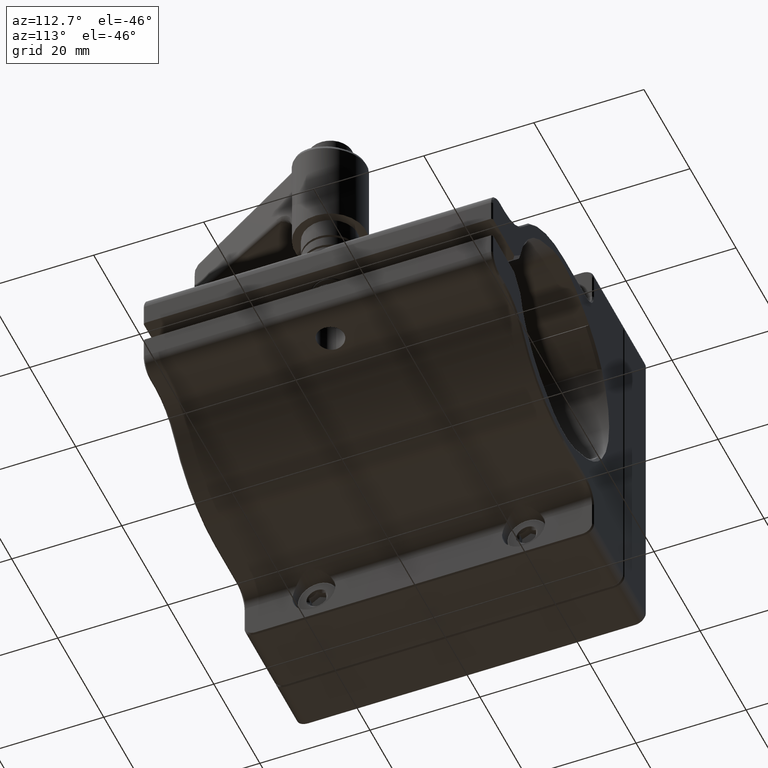
[diagram: clean part render]
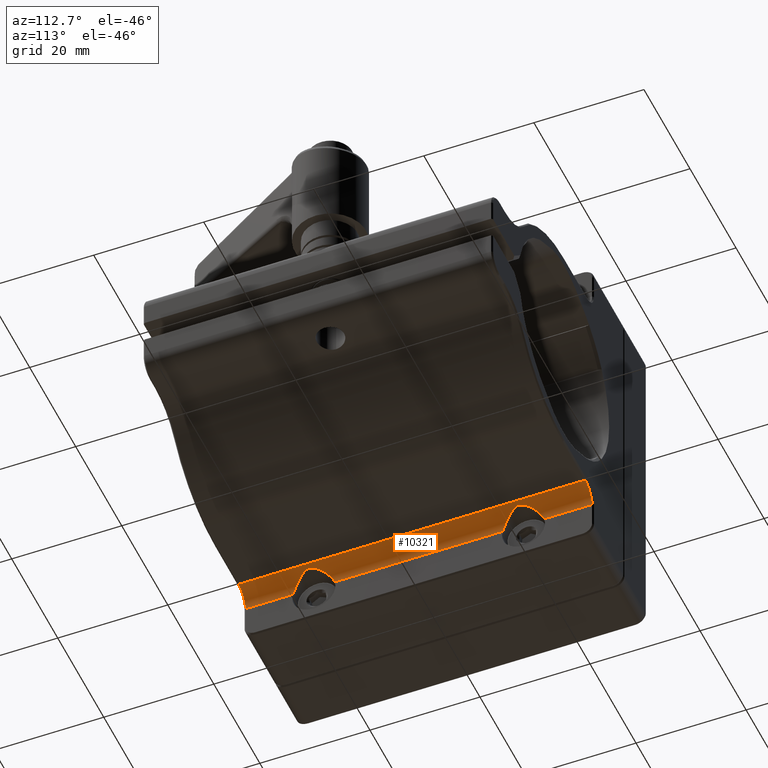
[diagram: same view with one face highlighted and labeled with its STEP entity id]
A machine part, auxiliary view. The second image highlights one B-rep face of the part: STEP entity #10321.
In plain terms, the highlighted cylindrical surface (edge-blend (fillet) strip) has radius 3 mm, axis along (-0, 1, 0).
Its self-contained STEP definition (entity closure, byte-faithful):
#374 = VECTOR ( 'NONE', #13506, 1000.000000000000000 ) ;
#410 = B_SPLINE_CURVE_WITH_KNOTS ( 'NONE', 3,
 ( #15550, #8176, #7125, #5577, #5902, #12076, #8013, #14263, #13126, #15470, #4434, #10682, #3134, #4065, #9397, #10525, #4517, #14346 ),
 .UNSPECIFIED., .F., .F.,
 ( 4, 2, 2, 2, 2, 2, 2, 2, 4 ),
 ( 0.005480826278065398238, 0.005823734998387810474, 0.006166643718710222710, 0.006852461159355039376, 0.008224096040644685718, 0.008909913481289506720, 0.009595730921934327723, 0.01028154836257914873, 0.01096736580322396799 ),
 .UNSPECIFIED. ) ;
#495 = CARTESIAN_POINT ( 'NONE',  ( 6.628622546029700580, 22.65780924495169657, -24.66381581758383845 ) ) ;
#630 = DIRECTION ( 'NONE',  ( 0.000000000000000000, -1.000000000000000000, -1.092739197465705411E-16 ) ) ;
#662 = CARTESIAN_POINT ( 'NONE',  ( 8.631500128534728589, 19.05000000000000071, -22.26200000000000045 ) ) ;
#732 = CARTESIAN_POINT ( 'NONE',  ( 8.522815381719480499, 19.61159987250814396, -22.30118164624599331 ) ) ;
#933 = CARTESIAN_POINT ( 'NONE',  ( 6.604000000000000092, 31.50000000000000000, -25.10000000000000497 ) ) ;
#965 = EDGE_CURVE ( 'NONE', #9285, #14516, #11412, .T. ) ;
#1005 = CARTESIAN_POINT ( 'NONE',  ( 7.227917706480936566, 16.43638051125839894, -23.25992256955862914 ) ) ;
#1167 = CARTESIAN_POINT ( 'NONE',  ( 6.604000000000002757, 15.36067059162085435, -24.87636054572610433 ) ) ;
#1235 = FACE_OUTER_BOUND ( 'NONE', #5353, .T. ) ;
#1421 = B_SPLINE_CURVE_WITH_KNOTS ( 'NONE', 3,
 ( #662, #11920, #4217, #10703, #732, #6669, #9184, #1870, #11614, #4536, #6818, #6892, #7966, #5524, #15575, #495, #9499, #4454 ),
 .UNSPECIFIED., .F., .F.,
 ( 4, 2, 2, 2, 2, 2, 2, 2, 4 ),
 ( 0.005480826278065398238, 0.005823734998387803535, 0.006166643718710209700, 0.006852461159355028100, 0.008224096040644673575, 0.008909913481289496312, 0.009595730921934319049, 0.01028154836257914179, 0.01096736580322396626 ),
 .UNSPECIFIED. ) ;
#1513 = DIRECTION ( 'NONE',  ( 0.000000000000000000, 0.000000000000000000, -1.000000000000000000 ) ) ;
#1740 = VERTEX_POINT ( 'NONE', #11171 ) ;
#1806 = CARTESIAN_POINT ( 'NONE',  ( 8.631500128534733918, -19.16475641489381943, -22.26200000000000401 ) ) ;
#1808 = VERTEX_POINT ( 'NONE', #2191 ) ;
#1870 = CARTESIAN_POINT ( 'NONE',  ( 7.927535498898303779, 20.68235818625357325, -22.59808838889907889 ) ) ;
#1961 = CARTESIAN_POINT ( 'NONE',  ( 7.336077362452289030, -21.51028468029436880, -23.12947242737892495 ) ) ;
#2034 = CARTESIAN_POINT ( 'NONE',  ( 8.616000968544568650, -19.28062197186277160, -22.26720908386717213 ) ) ;
#2040 = CARTESIAN_POINT ( 'NONE',  ( 8.275565339892821726, 17.97843506700335325, -22.40689750350788856 ) ) ;
#2125 = CARTESIAN_POINT ( 'NONE',  ( 8.043417033782391812, -20.49562199287244013, -22.53443563551066475 ) ) ;
#2191 = CARTESIAN_POINT ( 'NONE',  ( 8.631500128534732141, -19.05000000000000071, -22.26200000000000401 ) ) ;
#2345 = VERTEX_POINT ( 'NONE', #11487 ) ;
#2792 = CARTESIAN_POINT ( 'NONE',  ( 9.604000000000000981, -31.49999999999997158, -25.10000000000001208 ) ) ;
#2926 = B_SPLINE_CURVE_WITH_KNOTS ( 'NONE', 3,
 ( #4478, #14303, #3173, #13077, #3250, #8210, #12922, #10804, #1961, #13156, #8132, #6911, #2125, #11857, #3329, #15754, #11709, #2034, #1806, #4637 ),
 .UNSPECIFIED., .F., .F.,
 ( 4, 2, 2, 2, 2, 2, 2, 2, 2, 4 ),
 ( 0.000000000000000000, 0.0006851032847581747798, 0.001370206569516349560, 0.002055309854274524339, 0.002740413139032699119, 0.003425516423790873899, 0.004110619708549048679, 0.004795722993307223458, 0.005138274635686310848, 0.005480826278065398238 ),
 .UNSPECIFIED. ) ;
#3134 = CARTESIAN_POINT ( 'NONE',  ( 6.935796665775428416, -16.00529767271505222, -23.71532568542909303 ) ) ;
#3173 = CARTESIAN_POINT ( 'NONE',  ( 6.628620742993823534, -22.65790423072994741, -24.66416097546844455 ) ) ;
#3250 = CARTESIAN_POINT ( 'NONE',  ( 6.781016348279036876, -22.34645602855973578, -24.06675303115456188 ) ) ;
#3329 = CARTESIAN_POINT ( 'NONE',  ( 8.388178771225783592, -19.92599940996844765, -22.35570449953764438 ) ) ;
#3404 = CARTESIAN_POINT ( 'NONE',  ( 6.604000000000000092, 2.742775385638921336E-15, -25.10000000000000853 ) ) ;
#3578 = DIRECTION ( 'NONE',  ( -0.000000000000000000, 1.000000000000000000, 1.092739197465705411E-16 ) ) ;
#3579 = B_SPLINE_CURVE_WITH_KNOTS ( 'NONE', 3,
 ( #11950, #1167, #7176, #11064, #16015, #12124, #14794, #1005, #5947, #14642, #7247, #4887, #3668, #2040, #14873, #8714, #7482, #5303, #11222, #8957 ),
 .UNSPECIFIED., .F., .F.,
 ( 4, 2, 2, 2, 2, 2, 2, 2, 2, 4 ),
 ( 0.000000000000000000, 0.0006851032847581769482, 0.001370206569516351294, 0.002055309854274526074, 0.002740413139032700854, 0.003425516423790875200, 0.004110619708549049546, 0.004795722993307224326, 0.005138274635686311716, 0.005480826278065398238 ),
 .UNSPECIFIED. ) ;
#3668 = CARTESIAN_POINT ( 'NONE',  ( 8.043417033782393588, 17.60437800712756840, -22.53443563551066120 ) ) ;
#3942 = ORIENTED_EDGE ( 'NONE', *, *, #965, .T. ) ;
#4012 = CARTESIAN_POINT ( 'NONE',  ( 9.604000000000000981, 31.50000000000000000, -22.10000000000000497 ) ) ;
#4065 = CARTESIAN_POINT ( 'NONE',  ( 6.781465490651242156, -15.75429965631134088, -24.06562534169921364 ) ) ;
#4217 = CARTESIAN_POINT ( 'NONE',  ( 8.615835409555089086, 19.28144102271454230, -22.26726734197130142 ) ) ;
#4434 = CARTESIAN_POINT ( 'NONE',  ( 7.227848566057295976, -16.43628373863617753, -23.25999822394392424 ) ) ;
#4454 = CARTESIAN_POINT ( 'NONE',  ( 6.604000000000000092, 22.80261988482713065, -25.10000000000000497 ) ) ;
#4478 = CARTESIAN_POINT ( 'NONE',  ( 6.604000000000000981, -22.80261988482713065, -25.10000000000001208 ) ) ;
#4493 = ORIENTED_EDGE ( 'NONE', *, *, #4860, .T. ) ;
#4517 = CARTESIAN_POINT ( 'NONE',  ( 6.603999999999999204, -15.36065588792195591, -24.87641250183990849 ) ) ;
#4536 = CARTESIAN_POINT ( 'NONE',  ( 7.336077587788298437, 21.51028419243913348, -23.12946499139125223 ) ) ;
#4637 = CARTESIAN_POINT ( 'NONE',  ( 8.631500128534732141, -19.05000000000000071, -22.26200000000000401 ) ) ;
#4860 = EDGE_CURVE ( 'NONE', #6553, #1808, #2926, .T. ) ;
#4887 = CARTESIAN_POINT ( 'NONE',  ( 7.921725487127749155, 17.42444670276150021, -22.61148884886786803 ) ) ;
#5188 = VECTOR ( 'NONE', #7524, 1000.000000000000000 ) ;
#5303 = CARTESIAN_POINT ( 'NONE',  ( 8.616000968544563321, 18.81937802813722271, -22.26720908386716147 ) ) ;
#5353 = EDGE_LOOP ( 'NONE', ( #10854, #14823, #11963, #4493, #7569, #6716, #7893, #8954, #9309, #3942 ) ) ;
#5524 = CARTESIAN_POINT ( 'NONE',  ( 6.781465490651239492, 22.34570034368867297, -24.06562534169920298 ) ) ;
#5577 = CARTESIAN_POINT ( 'NONE',  ( 8.561176004255388605, -18.59575172887688410, -22.28693020286187476 ) ) ;
#5843 = CARTESIAN_POINT ( 'NONE',  ( 6.604000000000000092, 2.742775385638921336E-15, -25.10000000000000853 ) ) ;
#5902 = CARTESIAN_POINT ( 'NONE',  ( 8.522815381719485828, -18.48840012749186457, -22.30118164624599331 ) ) ;
#5922 = CARTESIAN_POINT ( 'NONE',  ( 6.604000000000000092, -31.50000000000000000, -25.10000000000001208 ) ) ;
#5923 = EDGE_CURVE ( 'NONE', #2345, #14516, #9929, .T. ) ;
#5947 = CARTESIAN_POINT ( 'NONE',  ( 7.336077362452286366, 16.58971531970562907, -23.12947242737891784 ) ) ;
#6293 = CARTESIAN_POINT ( 'NONE',  ( 9.604000000000000981, 31.50000000000000000, -25.10000000000000497 ) ) ;
#6460 = DIRECTION ( 'NONE',  ( -0.000000000000000000, 1.000000000000000000, -0.000000000000000000 ) ) ;
#6553 = VERTEX_POINT ( 'NONE', #8550 ) ;
#6669 = CARTESIAN_POINT ( 'NONE',  ( 8.388180615613109126, 19.92599184530446976, -22.35570397933897269 ) ) ;
#6716 = ORIENTED_EDGE ( 'NONE', *, *, #14818, .F. ) ;
#6783 = AXIS2_PLACEMENT_3D ( 'NONE', #2792, #13754, #12542 ) ;
#6818 = CARTESIAN_POINT ( 'NONE',  ( 7.227848566057295088, 21.66371626136382034, -23.25999822394391003 ) ) ;
#6882 = VECTOR ( 'NONE', #15740, 1000.000000000000000 ) ;
#6892 = CARTESIAN_POINT ( 'NONE',  ( 7.026886774005880909, 21.95711865194007828, -23.55397619897891914 ) ) ;
#6911 = CARTESIAN_POINT ( 'NONE',  ( 7.921725487127747378, -20.67555329723849766, -22.61148884886786803 ) ) ;
#7125 = CARTESIAN_POINT ( 'NONE',  ( 8.615835409555092639, -18.81855897728545912, -22.26726734197130142 ) ) ;
#7176 = CARTESIAN_POINT ( 'NONE',  ( 6.628620742993822645, 15.44209576927005401, -24.66416097546843744 ) ) ;
#7185 = CARTESIAN_POINT ( 'NONE',  ( 9.604000000000000981, 31.74999999999998579, -22.10000000000000497 ) ) ;
#7247 = CARTESIAN_POINT ( 'NONE',  ( 7.680684853330683737, 17.07606290696329765, -22.79270848556993201 ) ) ;
#7320 = DIRECTION ( 'NONE',  ( 0.000000000000000000, 0.000000000000000000, 1.000000000000000000 ) ) ;
#7481 = VERTEX_POINT ( 'NONE', #9338 ) ;
#7482 = CARTESIAN_POINT ( 'NONE',  ( 8.561247155570182343, 18.59589819796089571, -22.28690331376344247 ) ) ;
#7524 = DIRECTION ( 'NONE',  ( 0.000000000000000000, -1.000000000000000000, -1.092739197465705411E-16 ) ) ;
#7544 = EDGE_CURVE ( 'NONE', #6553, #7545, #10624, .T. ) ;
#7545 = VERTEX_POINT ( 'NONE', #5922 ) ;
#7569 = ORIENTED_EDGE ( 'NONE', *, *, #11991, .T. ) ;
#7808 = VERTEX_POINT ( 'NONE', #14123 ) ;
#7893 = ORIENTED_EDGE ( 'NONE', *, *, #14792, .T. ) ;
#7966 = CARTESIAN_POINT ( 'NONE',  ( 6.935796665775429304, 22.09470232728494921, -23.71532568542909658 ) ) ;
#8013 = CARTESIAN_POINT ( 'NONE',  ( 8.275606040297423860, -17.97850966536984174, -22.40688039234615303 ) ) ;
#8132 = CARTESIAN_POINT ( 'NONE',  ( 7.680684853330684625, -21.02393709303670377, -22.79270848556993556 ) ) ;
#8176 = CARTESIAN_POINT ( 'NONE',  ( 8.631500128534730365, -18.93512396231199446, -22.26200000000000401 ) ) ;
#8210 = CARTESIAN_POINT ( 'NONE',  ( 6.935696941442002661, -22.09483938644709156, -23.71544419245660862 ) ) ;
#8382 = CARTESIAN_POINT ( 'NONE',  ( 9.604000000000000981, 31.74999999999998579, -25.10000000000000497 ) ) ;
#8550 = CARTESIAN_POINT ( 'NONE',  ( 6.604000000000000981, -22.80261988482713065, -25.10000000000001208 ) ) ;
#8624 = CYLINDRICAL_SURFACE ( 'NONE', #11229, 2.999999999999999112 ) ;
#8714 = CARTESIAN_POINT ( 'NONE',  ( 8.522825354419378385, 18.48842504425074651, -22.30117772102219220 ) ) ;
#8954 = ORIENTED_EDGE ( 'NONE', *, *, #10581, .T. ) ;
#8957 = CARTESIAN_POINT ( 'NONE',  ( 8.631500128534728589, 19.05000000000000071, -22.26200000000000045 ) ) ;
#9184 = CARTESIAN_POINT ( 'NONE',  ( 8.275606040297422084, 20.12149033463015613, -22.40688039234614592 ) ) ;
#9215 = VERTEX_POINT ( 'NONE', #12466 ) ;
#9285 = VERTEX_POINT ( 'NONE', #933 ) ;
#9309 = ORIENTED_EDGE ( 'NONE', *, *, #14255, .F. ) ;
#9338 = CARTESIAN_POINT ( 'NONE',  ( 6.604000000000000092, 22.80261988482713065, -25.10000000000000497 ) ) ;
#9397 = CARTESIAN_POINT ( 'NONE',  ( 6.717103136724415613, -15.63889318562058861, -24.25800585786218377 ) ) ;
#9499 = CARTESIAN_POINT ( 'NONE',  ( 6.603999999999999204, 22.73934411207803663, -24.87641250183989428 ) ) ;
#9929 = LINE ( 'NONE', #7185, #374 ) ;
#10158 = CIRCLE ( 'NONE', #6783, 2.999999999999999112 ) ;
#10321 = ADVANCED_FACE ( 'NONE', ( #1235 ), #8624, .F. ) ;
#10525 = CARTESIAN_POINT ( 'NONE',  ( 6.628622546029699691, -15.44219075504830307, -24.66381581758384556 ) ) ;
#10581 = EDGE_CURVE ( 'NONE', #1740, #7481, #1421, .T. ) ;
#10624 = LINE ( 'NONE', #5843, #6882 ) ;
#10682 = CARTESIAN_POINT ( 'NONE',  ( 7.026886774005875580, -16.14288134805991248, -23.55397619897891559 ) ) ;
#10703 = CARTESIAN_POINT ( 'NONE',  ( 8.561176004255383276, 19.50424827112310666, -22.28693020286187121 ) ) ;
#10804 = CARTESIAN_POINT ( 'NONE',  ( 7.227917706480940119, -21.66361948874159893, -23.25992256955863624 ) ) ;
#10854 = ORIENTED_EDGE ( 'NONE', *, *, #5923, .F. ) ;
#11064 = CARTESIAN_POINT ( 'NONE',  ( 6.716663192016843809, 15.63800566089319410, -24.25968842945434290 ) ) ;
#11171 = CARTESIAN_POINT ( 'NONE',  ( 8.631500128534728589, 19.05000000000000071, -22.26200000000000045 ) ) ;
#11222 = CARTESIAN_POINT ( 'NONE',  ( 8.631500128534730365, 18.93524358510618200, -22.26200000000000401 ) ) ;
#11229 = AXIS2_PLACEMENT_3D ( 'NONE', #8382, #3578, #7320 ) ;
#11412 = CIRCLE ( 'NONE', #13471, 2.999999999999999112 ) ;
#11487 = CARTESIAN_POINT ( 'NONE',  ( 9.604000000000000981, -31.50000000000000000, -22.10000000000001208 ) ) ;
#11614 = CARTESIAN_POINT ( 'NONE',  ( 7.675757107670094115, 21.03022007320545228, -22.77883639093695578 ) ) ;
#11709 = CARTESIAN_POINT ( 'NONE',  ( 8.561247155570185896, -19.50410180203910215, -22.28690331376344957 ) ) ;
#11857 = CARTESIAN_POINT ( 'NONE',  ( 8.275565339892819949, -20.12156493299666238, -22.40689750350789211 ) ) ;
#11920 = CARTESIAN_POINT ( 'NONE',  ( 8.631500128534730365, 19.16487603768800341, -22.26200000000000401 ) ) ;
#11950 = CARTESIAN_POINT ( 'NONE',  ( 6.604000000000000981, 15.29738011517286900, -25.10000000000000853 ) ) ;
#11963 = ORIENTED_EDGE ( 'NONE', *, *, #7544, .F. ) ;
#11991 = EDGE_CURVE ( 'NONE', #1808, #7808, #410, .T. ) ;
#12064 = EDGE_CURVE ( 'NONE', #2345, #7545, #10158, .T. ) ;
#12076 = CARTESIAN_POINT ( 'NONE',  ( 8.388180615613116231, -18.17400815469553521, -22.35570397933897979 ) ) ;
#12124 = CARTESIAN_POINT ( 'NONE',  ( 6.935696941442002661, 16.00516061355290987, -23.71544419245659796 ) ) ;
#12362 = LINE ( 'NONE', #3404, #5188 ) ;
#12466 = CARTESIAN_POINT ( 'NONE',  ( 6.604000000000000981, 15.29738011517286900, -25.10000000000000853 ) ) ;
#12467 = VECTOR ( 'NONE', #630, 1000.000000000000000 ) ;
#12542 = DIRECTION ( 'NONE',  ( 0.000000000000000000, 0.000000000000000000, 1.000000000000000000 ) ) ;
#12922 = CARTESIAN_POINT ( 'NONE',  ( 7.027091220161326923, -21.95681599632241188, -23.55365167055256492 ) ) ;
#12947 = CARTESIAN_POINT ( 'NONE',  ( 6.604000000000000092, 2.742775385638921336E-15, -25.10000000000000853 ) ) ;
#13077 = CARTESIAN_POINT ( 'NONE',  ( 6.716663192016843809, -22.46199433910679844, -24.25968842945435355 ) ) ;
#13126 = CARTESIAN_POINT ( 'NONE',  ( 7.675757107670096779, -17.06977992679455269, -22.77883639093696289 ) ) ;
#13156 = CARTESIAN_POINT ( 'NONE',  ( 7.562402208303494966, -21.19042273257734621, -22.89583792308704346 ) ) ;
#13471 = AXIS2_PLACEMENT_3D ( 'NONE', #6293, #6460, #1513 ) ;
#13506 = DIRECTION ( 'NONE',  ( -0.000000000000000000, 1.000000000000000000, 1.092739197465705411E-16 ) ) ;
#13754 = DIRECTION ( 'NONE',  ( -0.000000000000000000, -1.000000000000000000, -0.000000000000000000 ) ) ;
#14123 = CARTESIAN_POINT ( 'NONE',  ( 6.604000000000000092, -15.29738011517286900, -25.10000000000001208 ) ) ;
#14243 = LINE ( 'NONE', #12947, #12467 ) ;
#14255 = EDGE_CURVE ( 'NONE', #9285, #7481, #14243, .T. ) ;
#14263 = CARTESIAN_POINT ( 'NONE',  ( 7.927535498898303779, -17.41764181374643172, -22.59808838889907889 ) ) ;
#14303 = CARTESIAN_POINT ( 'NONE',  ( 6.604000000000000981, -22.73932940837914529, -24.87636054572610433 ) ) ;
#14346 = CARTESIAN_POINT ( 'NONE',  ( 6.604000000000000092, -15.29738011517286900, -25.10000000000001208 ) ) ;
#14516 = VERTEX_POINT ( 'NONE', #4012 ) ;
#14642 = CARTESIAN_POINT ( 'NONE',  ( 7.562402208303490525, 16.90957726742264455, -22.89583792308704702 ) ) ;
#14792 = EDGE_CURVE ( 'NONE', #9215, #1740, #3579, .T. ) ;
#14794 = CARTESIAN_POINT ( 'NONE',  ( 7.027091220161326035, 16.14318400367758954, -23.55365167055256137 ) ) ;
#14818 = EDGE_CURVE ( 'NONE', #9215, #7808, #12362, .T. ) ;
#14823 = ORIENTED_EDGE ( 'NONE', *, *, #12064, .T. ) ;
#14873 = CARTESIAN_POINT ( 'NONE',  ( 8.388178771225783592, 18.17400059003155732, -22.35570449953765149 ) ) ;
#15470 = CARTESIAN_POINT ( 'NONE',  ( 7.336077587788301990, -16.58971580756087150, -23.12946499139125578 ) ) ;
#15550 = CARTESIAN_POINT ( 'NONE',  ( 8.631500128534732141, -19.05000000000000071, -22.26200000000000401 ) ) ;
#15575 = CARTESIAN_POINT ( 'NONE',  ( 6.717103136724412060, 22.46110681437940926, -24.25800585786216246 ) ) ;
#15740 = DIRECTION ( 'NONE',  ( 0.000000000000000000, -1.000000000000000000, -1.092739197465705411E-16 ) ) ;
#15754 = CARTESIAN_POINT ( 'NONE',  ( 8.522825354419378385, -19.61157495574926557, -22.30117772102218865 ) ) ;
#16015 = CARTESIAN_POINT ( 'NONE',  ( 6.781016348279035100, 15.75354397144026741, -24.06675303115456188 ) ) ;